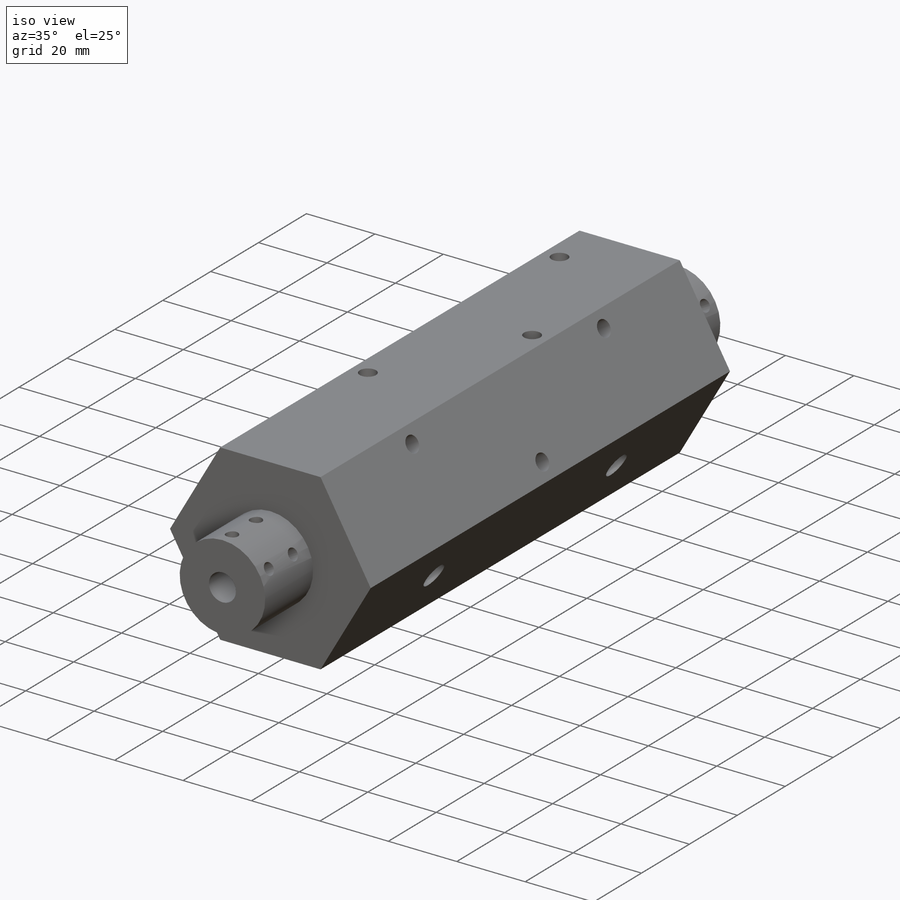
[diagram: iso view]
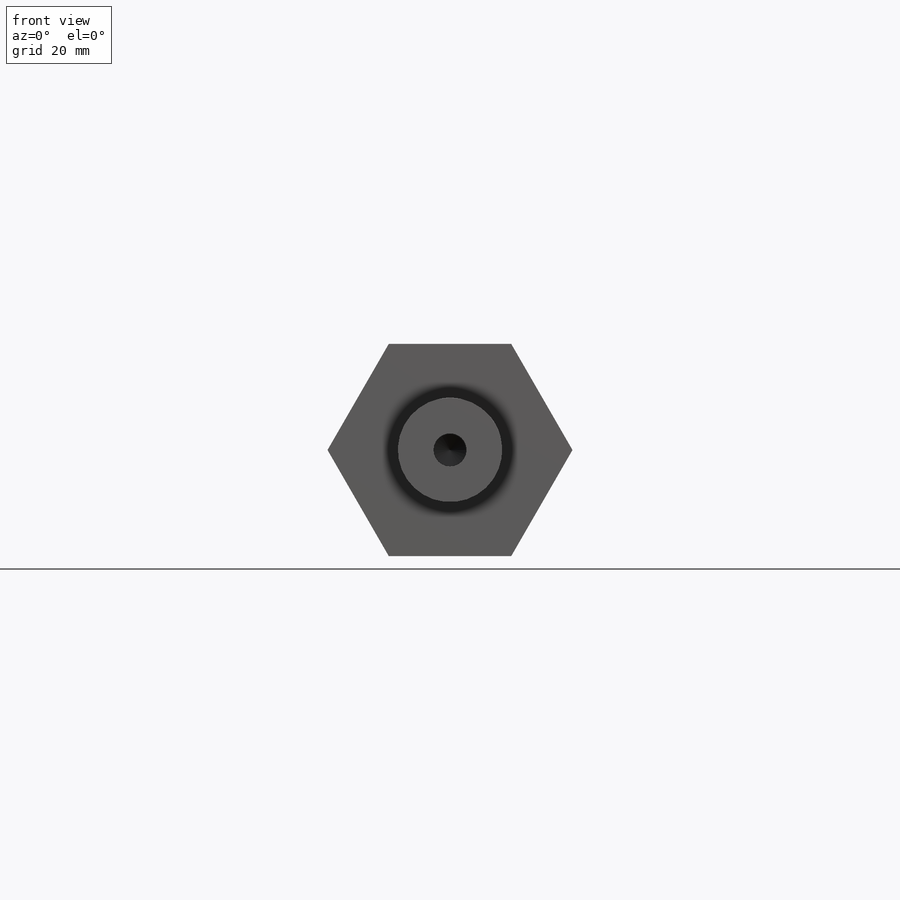
[diagram: front view]
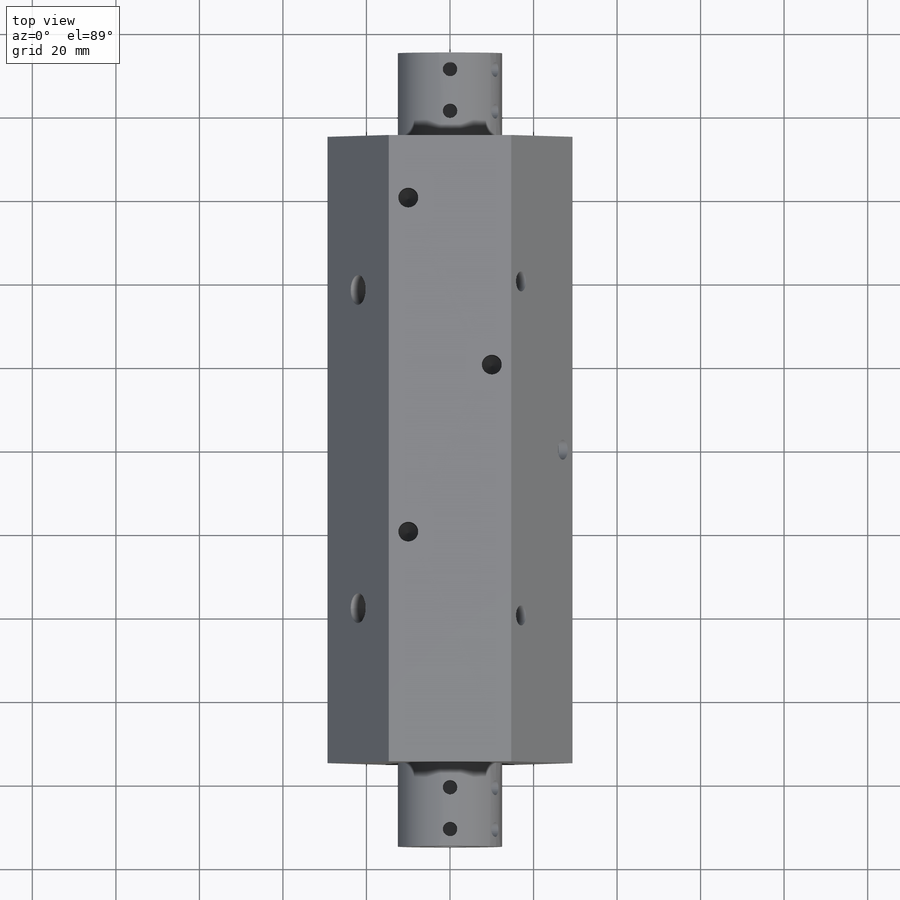
[diagram: top view]
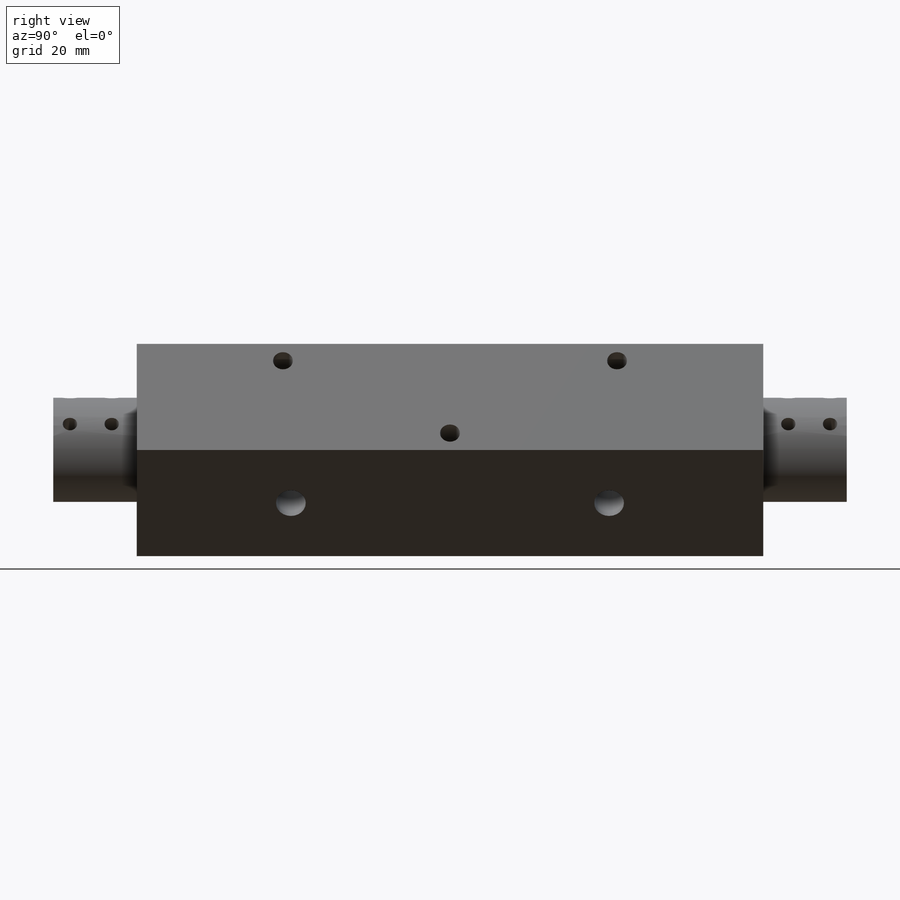
[diagram: right view]
SOLIDWORKS PART (.sldprt)
format: sldprt  version: not decoded by parser v0  size: 489,984 bytes
history: native  units: mm
features: sketch x12, hole x5, thread x2, material x1, extrude x1, cut_revolve x1, pattern_circular x1, mirror x1 (+12 scaffold rows collapsed)
feature tree (36):
  scaffold x12  (default folders/planes/origin — collapsed)
  material  "6061-T6 (SS)"
  sketch  "Sketch1"  dims[c1.D2=20.0mm c1.D1=~15.034655mm c2.D1=60.0deg c3.D1=~13.176313mm c4.D1=60.0deg c5.D1=10.0mm c5.D3=~3.132271mm c6.D3=30.0deg c6.D1=30.0mm c6.D4=~62.44998mm c6.D5=30.0mm c6.D6=~51.961524mm c7.D5=50.8mm c7.D6=~29.329394mm c7.D3=~14.073087mm c8.D3=60.0deg c8.D1=50.8mm]
  extrude  "Boss-Extrude1"  Depth=190mm
  hole  "N (0.302) Diameter Hole1"  Diameter=7.6708mm Depth=25mm
  sketch  "Sketch5"
  sketch  "Sketch4"  dims[hole-wizard template sketch: 46 standard entries collapsed; hole parameters kept: c15.Hole Dia.=7.6708mm c15.Hole Depth=25.0mm c15.D3=~14.816244mm c15.Drill Angle=90.0deg]
  sketch  "Sketch7"  dims[c1.D1=7.915mm c1.D2=30.0mm c1.D3=25.0mm c1.D4=10.0mm c1.D5=5.0mm c2.D4=100.0mm c2.D5=5.0mm c2.D6=~99.734399mm c3.D6=45.0deg c3.D4=40.0mm c3.D7=8.0mm c3.D5=3.0mm c4.D6=20.0mm c4.D7=11.176mm c4.D8=12.319mm c4.D2=1.0mm c4.D9=23.0mm]
  cut_revolve  "Cut-Revolve1"  Angle=360deg
  hole  "#8-32 Tapped Hole1"  Diameter=3.4544mm Depth=25mm
  sketch  "3DSketch3"  dims[D1=4.0mm D2=10.0mm]
  sketch  "Sketch14"  dims[hole-wizard template sketch: 60 standard entries collapsed; hole parameters kept: c18.Thru Tap Drill Depth=25.0mm]
  thread  "Hole Thread1"  Diameter=4.1656mm  [1 undecoded]
  thread  "Hole Thread2"  Diameter=4.1656mm  [1 undecoded]
  pattern_circular  "CirPattern1"  Count=2 Angle=60deg
  mirror  "Mirror1"
  hole  "3/16 (0.1875) Diameter Hole1"  Diameter=4.7625mm Depth=15mm
  sketch  "3DSketch2"  dims[c1.D1=80.0mm c1.D2=20.0mm c1.D3=100.0mm c1.D4=80.0mm c2.D3=50.0mm c2.D6=45.0mm c2.D4=50.0mm c2.D5=~53.108696mm c3.D6=30.0mm c3.D3=20.0mm c3.D5=12.0mm c4.D6=20.0mm]
  sketch  "Sketch11"  dims[hole-wizard template sketch: 47 standard entries collapsed; hole parameters kept: c15.Hole Depth=15.0mm c15.D3=~14.816244mm c15.Drill Angle=90.0deg]
  hole  "1/8 (0.125) Diameter Hole1"  Diameter=3.175mm Depth=4mm
  sketch  "Sketch17"  dims[D1=20.0mm D2=10.0mm]
  sketch  "Sketch16"  dims[hole-wizard template sketch: 47 standard entries collapsed; hole parameters kept: c15.Hole Depth=4.0mm c15.D3=~14.816244mm c15.Drill Angle=90.0deg]
  hole  "1/4 Clearance Hole1"  Diameter=7.14248mm Depth=63.5mm
  sketch  "Sketch19"  dims[D1=76.2mm]
  sketch  "Sketch18"  dims[hole-wizard template sketch: 60 standard entries collapsed; hole parameters kept: c18.Thru Hole Depth=63.5mm]
decode coverage: 21 of 23 modeling features carry decoded parameters
note: ~ marks probable driven/reference dimensions
note: 2 parameter values undecoded
summary: Diameter pulled from absorbed wizard sketch
note: suppression state not decoded; provenance and decode notes live in map.json
